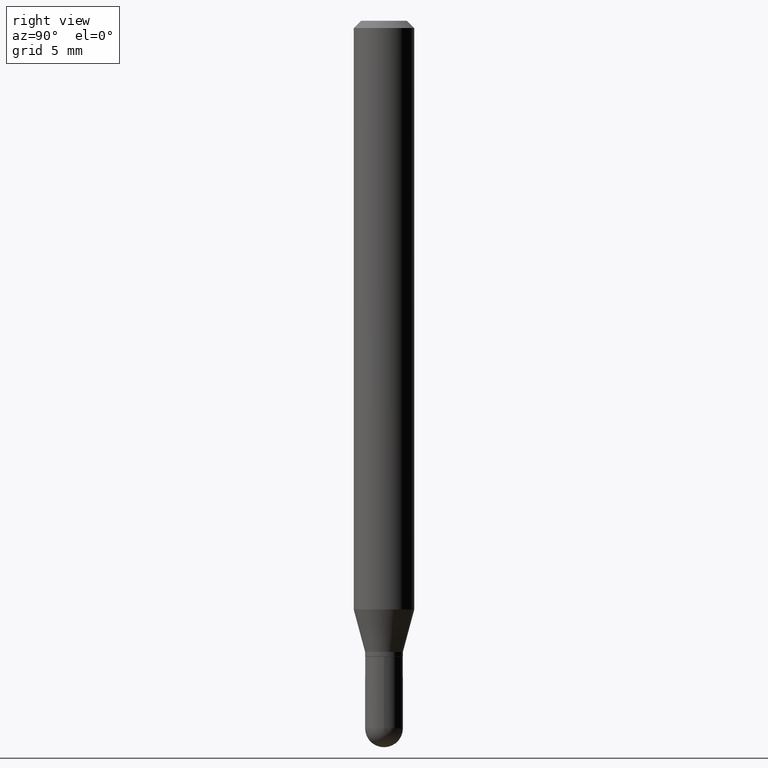
[diagram: clean part render]
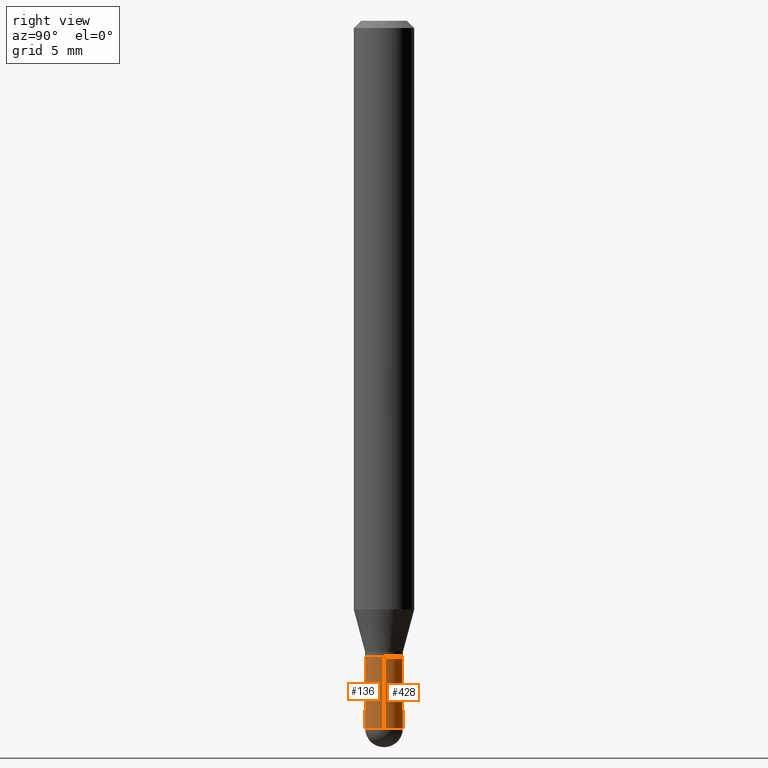
[diagram: same view with one multi-face feature highlighted, each face labeled with its STEP entity id]
A machine part, right view. The highlighted faces form ONE feature: a constant-radius fillet chain: 2 tangent blend faces with common blend radius 0.9919 mm. The faces share edges in the B-rep.
Their STEP definitions:
[1] entity #136 (Cylinder):
#2 = DIRECTION ( 'NONE',  ( 1.000000000000000000, -6.982962677686266711E-15, 0.000000000000000000 ) ) ;
#20 = CARTESIAN_POINT ( 'NONE',  ( 0.03905000000000000832, -2.726846925636487675E-16, 1.904147030948313202E-30 ) ) ;
#47 = VERTEX_POINT ( 'NONE', #394 ) ;
#87 = VECTOR ( 'NONE', #288, 39.37007874015748143 ) ;
#90 = VERTEX_POINT ( 'NONE', #192 ) ;
#94 = AXIS2_PLACEMENT_3D ( 'NONE', #270, #224, #352 ) ;
#107 = FACE_OUTER_BOUND ( 'NONE', #255, .T. ) ;
#129 = EDGE_CURVE ( 'NONE', #374, #90, #289, .T. ) ;
#135 = CARTESIAN_POINT ( 'NONE',  ( 0.03905000000000000832, -5.115282022505621222E-15, -1.460950000000000193 ) ) ;
#136 = ADVANCED_FACE ( 'NONE', ( #107 ), #503, .T. ) ;
#152 = EDGE_CURVE ( 'NONE', #160, #47, #488, .T. ) ;
#160 = VERTEX_POINT ( 'NONE', #431 ) ;
#166 = ORIENTED_EDGE ( 'NONE', *, *, #285, .F. ) ;
#192 = CARTESIAN_POINT ( 'NONE',  ( 0.03905000000000000138, -4.856999690464699711E-15, -1.313000000000000167 ) ) ;
#193 = AXIS2_PLACEMENT_3D ( 'NONE', #233, #400, #273 ) ;
#194 = CARTESIAN_POINT ( 'NONE',  ( -0.03905000000000000832, 2.774669383143191817E-16, -1.920844152744540988E-30 ) ) ;
#202 = ORIENTED_EDGE ( 'NONE', *, *, #152, .T. ) ;
#209 = CARTESIAN_POINT ( 'NONE',  ( -0.03905000000000000138, -4.565130391627653569E-15, -1.313000000000000167 ) ) ;
#224 = DIRECTION ( 'NONE',  ( -2.445468806185136597E-29, 3.491481338843145583E-15, 1.000000000000000000 ) ) ;
#233 = CARTESIAN_POINT ( 'NONE',  ( 0.000000000000000000, 0.000000000000000000, 0.000000000000000000 ) ) ;
#235 = AXIS2_PLACEMENT_3D ( 'NONE', #312, #319, #2 ) ;
#245 = CARTESIAN_POINT ( 'NONE',  ( 3.572707652396175485E-29, -5.100879661982893620E-15, -1.460950000000000193 ) ) ;
#255 = EDGE_LOOP ( 'NONE', ( #166, #202, #293, #410, #261 ) ) ;
#261 = ORIENTED_EDGE ( 'NONE', *, *, #129, .F. ) ;
#270 = CARTESIAN_POINT ( 'NONE',  ( 3.572707652396175485E-29, -5.100879661982893620E-15, -1.460950000000000193 ) ) ;
#273 = DIRECTION ( 'NONE',  ( 1.000000000000000000, -6.982962677686266711E-15, 4.876176775795935232E-29 ) ) ;
#280 = AXIS2_PLACEMENT_3D ( 'NONE', #245, #406, #329 ) ;
#285 = EDGE_CURVE ( 'NONE', #160, #374, #485, .T. ) ;
#288 = DIRECTION ( 'NONE',  ( -2.445468806185136877E-29, 3.491481338843145188E-15, 1.000000000000000000 ) ) ;
#289 = CIRCLE ( 'NONE', #235, 0.03905000000000000138 ) ;
#293 = ORIENTED_EDGE ( 'NONE', *, *, #337, .T. ) ;
#312 = CARTESIAN_POINT ( 'NONE',  ( 3.210900542521084585E-29, -4.584314997901050598E-15, -1.313000000000000167 ) ) ;
#319 = DIRECTION ( 'NONE',  ( -2.445468806185136597E-29, 3.491481338843145583E-15, 1.000000000000000000 ) ) ;
#329 = DIRECTION ( 'NONE',  ( 1.000000000000000000, -6.982962677686265133E-15, 0.000000000000000000 ) ) ;
#337 = EDGE_CURVE ( 'NONE', #47, #413, #392, .T. ) ;
#341 = DIRECTION ( 'NONE',  ( -2.445468806185136877E-29, 3.491481338843145188E-15, 1.000000000000000000 ) ) ;
#352 = DIRECTION ( 'NONE',  ( 1.000000000000000000, -6.982962677686265133E-15, 0.000000000000000000 ) ) ;
#374 = VERTEX_POINT ( 'NONE', #209 ) ;
#380 = LINE ( 'NONE', #20, #470 ) ;
#392 = CIRCLE ( 'NONE', #280, 0.03905000000000000832 ) ;
#394 = CARTESIAN_POINT ( 'NONE',  ( -2.726846925636134167E-16, -0.03905000000000517085, -1.460950000000000193 ) ) ;
#400 = DIRECTION ( 'NONE',  ( -2.445468806185136597E-29, 3.491481338843145583E-15, 1.000000000000000000 ) ) ;
#406 = DIRECTION ( 'NONE',  ( -2.445468806185136597E-29, 3.491481338843145583E-15, 1.000000000000000000 ) ) ;
#410 = ORIENTED_EDGE ( 'NONE', *, *, #484, .T. ) ;
#413 = VERTEX_POINT ( 'NONE', #135 ) ;
#431 = CARTESIAN_POINT ( 'NONE',  ( -0.03905000000000000832, -4.565130391627653569E-15, -1.460950000000000193 ) ) ;
#470 = VECTOR ( 'NONE', #341, 39.37007874015748143 ) ;
#484 = EDGE_CURVE ( 'NONE', #413, #90, #380, .T. ) ;
#485 = LINE ( 'NONE', #194, #87 ) ;
#488 = CIRCLE ( 'NONE', #94, 0.03905000000000000832 ) ;
#503 = CYLINDRICAL_SURFACE ( 'NONE', #193, 0.03905000000000000832 ) ;
[2] entity #428 (Cylinder):
#7 = CARTESIAN_POINT ( 'NONE',  ( 2.774669383143552228E-16, 0.03904999999999496374, -1.460950000000000193 ) ) ;
#8 = AXIS2_PLACEMENT_3D ( 'NONE', #336, #501, #382 ) ;
#18 = CYLINDRICAL_SURFACE ( 'NONE', #393, 0.03905000000000000832 ) ;
#20 = CARTESIAN_POINT ( 'NONE',  ( 0.03905000000000000832, -2.726846925636487675E-16, 1.904147030948313202E-30 ) ) ;
#36 = ORIENTED_EDGE ( 'NONE', *, *, #285, .T. ) ;
#74 = DIRECTION ( 'NONE',  ( 1.000000000000000000, -6.982962677686265133E-15, 0.000000000000000000 ) ) ;
#87 = VECTOR ( 'NONE', #288, 39.37007874015748143 ) ;
#90 = VERTEX_POINT ( 'NONE', #192 ) ;
#97 = EDGE_CURVE ( 'NONE', #216, #160, #234, .T. ) ;
#100 = DIRECTION ( 'NONE',  ( -2.445468806185136597E-29, 3.491481338843145583E-15, 1.000000000000000000 ) ) ;
#135 = CARTESIAN_POINT ( 'NONE',  ( 0.03905000000000000832, -5.115282022505621222E-15, -1.460950000000000193 ) ) ;
#139 = AXIS2_PLACEMENT_3D ( 'NONE', #151, #189, #182 ) ;
#151 = CARTESIAN_POINT ( 'NONE',  ( 3.572707652396175485E-29, -5.100879661982893620E-15, -1.460950000000000193 ) ) ;
#160 = VERTEX_POINT ( 'NONE', #431 ) ;
#162 = CIRCLE ( 'NONE', #8, 0.03905000000000000138 ) ;
#167 = EDGE_CURVE ( 'NONE', #413, #216, #330, .T. ) ;
#175 = FACE_OUTER_BOUND ( 'NONE', #238, .T. ) ;
#176 = ORIENTED_EDGE ( 'NONE', *, *, #484, .F. ) ;
#182 = DIRECTION ( 'NONE',  ( 1.000000000000000000, -6.982962677686265133E-15, 0.000000000000000000 ) ) ;
#189 = DIRECTION ( 'NONE',  ( -2.445468806185136597E-29, 3.491481338843145583E-15, 1.000000000000000000 ) ) ;
#192 = CARTESIAN_POINT ( 'NONE',  ( 0.03905000000000000138, -4.856999690464699711E-15, -1.313000000000000167 ) ) ;
#194 = CARTESIAN_POINT ( 'NONE',  ( -0.03905000000000000832, 2.774669383143191817E-16, -1.920844152744540988E-30 ) ) ;
#209 = CARTESIAN_POINT ( 'NONE',  ( -0.03905000000000000138, -4.565130391627653569E-15, -1.313000000000000167 ) ) ;
#216 = VERTEX_POINT ( 'NONE', #7 ) ;
#234 = CIRCLE ( 'NONE', #262, 0.03905000000000000832 ) ;
#238 = EDGE_LOOP ( 'NONE', ( #333, #36, #368, #176, #433 ) ) ;
#262 = AXIS2_PLACEMENT_3D ( 'NONE', #362, #434, #74 ) ;
#285 = EDGE_CURVE ( 'NONE', #160, #374, #485, .T. ) ;
#288 = DIRECTION ( 'NONE',  ( -2.445468806185136877E-29, 3.491481338843145188E-15, 1.000000000000000000 ) ) ;
#294 = CARTESIAN_POINT ( 'NONE',  ( 0.000000000000000000, 0.000000000000000000, 0.000000000000000000 ) ) ;
#330 = CIRCLE ( 'NONE', #139, 0.03905000000000000832 ) ;
#333 = ORIENTED_EDGE ( 'NONE', *, *, #97, .T. ) ;
#334 = DIRECTION ( 'NONE',  ( 1.000000000000000000, -6.982962677686266711E-15, 4.876176775795935232E-29 ) ) ;
#336 = CARTESIAN_POINT ( 'NONE',  ( 3.210900542521084585E-29, -4.584314997901050598E-15, -1.313000000000000167 ) ) ;
#341 = DIRECTION ( 'NONE',  ( -2.445468806185136877E-29, 3.491481338843145188E-15, 1.000000000000000000 ) ) ;
#362 = CARTESIAN_POINT ( 'NONE',  ( 3.572707652396175485E-29, -5.100879661982893620E-15, -1.460950000000000193 ) ) ;
#368 = ORIENTED_EDGE ( 'NONE', *, *, #506, .F. ) ;
#374 = VERTEX_POINT ( 'NONE', #209 ) ;
#380 = LINE ( 'NONE', #20, #470 ) ;
#382 = DIRECTION ( 'NONE',  ( 1.000000000000000000, -6.982962677686266711E-15, 0.000000000000000000 ) ) ;
#393 = AXIS2_PLACEMENT_3D ( 'NONE', #294, #100, #334 ) ;
#413 = VERTEX_POINT ( 'NONE', #135 ) ;
#428 = ADVANCED_FACE ( 'NONE', ( #175 ), #18, .T. ) ;
#431 = CARTESIAN_POINT ( 'NONE',  ( -0.03905000000000000832, -4.565130391627653569E-15, -1.460950000000000193 ) ) ;
#433 = ORIENTED_EDGE ( 'NONE', *, *, #167, .T. ) ;
#434 = DIRECTION ( 'NONE',  ( -2.445468806185136597E-29, 3.491481338843145583E-15, 1.000000000000000000 ) ) ;
#470 = VECTOR ( 'NONE', #341, 39.37007874015748143 ) ;
#484 = EDGE_CURVE ( 'NONE', #413, #90, #380, .T. ) ;
#485 = LINE ( 'NONE', #194, #87 ) ;
#501 = DIRECTION ( 'NONE',  ( -2.445468806185136597E-29, 3.491481338843145583E-15, 1.000000000000000000 ) ) ;
#506 = EDGE_CURVE ( 'NONE', #90, #374, #162, .T. ) ;